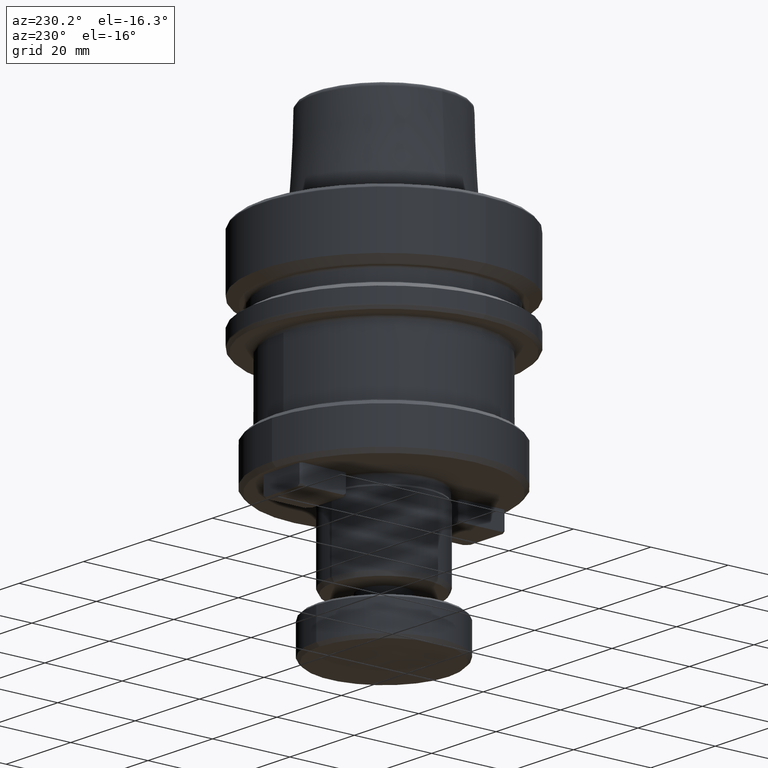
[diagram: clean part render]
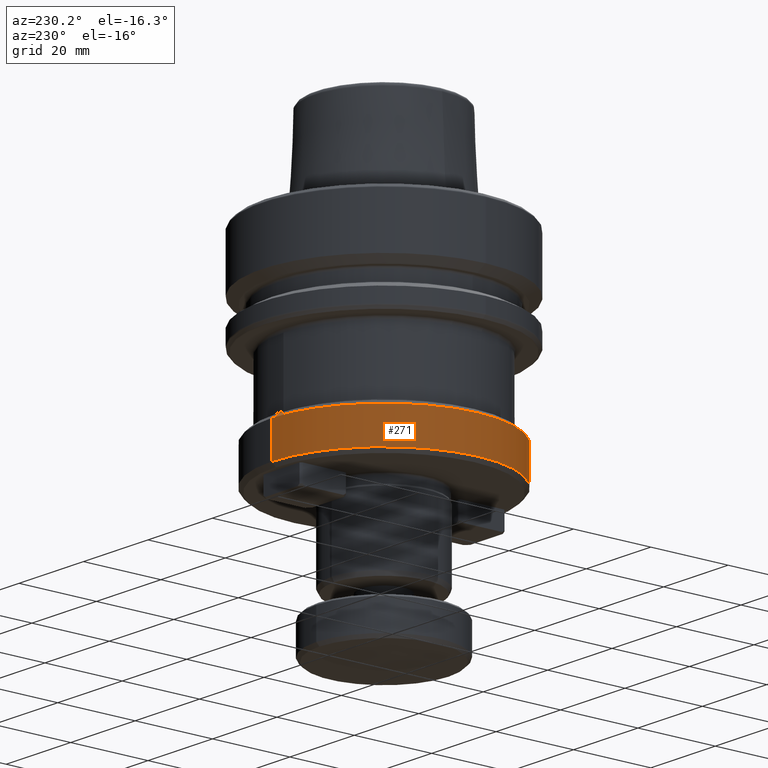
[diagram: same view with one face highlighted and labeled with its STEP entity id]
A machine part, auxiliary view. The second image highlights one B-rep face of the part: STEP entity #271.
In plain terms, the highlighted cylindrical surface (partial cylindrical patch) has radius 29 mm, axis along (-0, 0, -1).
Its self-contained STEP definition (entity closure, byte-faithful):
#46 = VECTOR ( 'NONE', #343, 1000.000000000000000 ) ;
#140 = AXIS2_PLACEMENT_3D ( 'NONE', #2576, #1079, #2833 ) ;
#178 = EDGE_CURVE ( 'NONE', #2361, #206, #264, .T. ) ;
#206 = VERTEX_POINT ( 'NONE', #2157 ) ;
#264 = CIRCLE ( 'NONE', #140, 28.99999999999999600 ) ;
#271 = ADVANCED_FACE ( 'NONE', ( #680 ), #611, .T. ) ;
#343 = DIRECTION ( 'NONE',  ( -0.0000000000000000000, 4.898587196589402800E-018, -1.000000000000000000 ) ) ;
#429 = AXIS2_PLACEMENT_3D ( 'NONE', #522, #2266, #1161 ) ;
#438 = ORIENTED_EDGE ( 'NONE', *, *, #1673, .F. ) ;
#522 = CARTESIAN_POINT ( 'NONE',  ( 1.902633352528937400, 4.065099942295091800, 0.2182076670171617700 ) ) ;
#611 = CYLINDRICAL_SURFACE ( 'NONE', #2142, 28.99999999999999600 ) ;
#613 = VERTEX_POINT ( 'NONE', #2233 ) ;
#629 = VECTOR ( 'NONE', #3137, 1000.000000000000000 ) ;
#657 = DIRECTION ( 'NONE',  ( -0.0000000000000000000, 4.898587196589402800E-018, -1.000000000000000000 ) ) ;
#680 = FACE_OUTER_BOUND ( 'NONE', #3104, .T. ) ;
#936 = ORIENTED_EDGE ( 'NONE', *, *, #178, .T. ) ;
#1079 = DIRECTION ( 'NONE',  ( -0.0000000000000000000, 4.898587196589402800E-018, -1.000000000000000000 ) ) ;
#1151 = ORIENTED_EDGE ( 'NONE', *, *, #1702, .T. ) ;
#1161 = DIRECTION ( 'NONE',  ( 0.0000000000000000000, 1.000000000000000000, 4.673285226230622800E-018 ) ) ;
#1189 = LINE ( 'NONE', #1631, #629 ) ;
#1350 = LINE ( 'NONE', #1825, #46 ) ;
#1631 = CARTESIAN_POINT ( 'NONE',  ( 1.902633352528940900, -24.93490005770490800, -21.78179233298284200 ) ) ;
#1633 = DIRECTION ( 'NONE',  ( 0.0000000000000000000, 1.000000000000000000, 0.0000000000000000000 ) ) ;
#1673 = EDGE_CURVE ( 'NONE', #613, #2754, #2770, .T. ) ;
#1702 = EDGE_CURVE ( 'NONE', #206, #2754, #1350, .T. ) ;
#1825 = CARTESIAN_POINT ( 'NONE',  ( 1.902633352528937400, 33.06509994229509200, -21.78179233298284200 ) ) ;
#2061 = CARTESIAN_POINT ( 'NONE',  ( 1.902633352528937400, 33.06509994229509200, 0.2182076670171619000 ) ) ;
#2075 = ORIENTED_EDGE ( 'NONE', *, *, #2939, .F. ) ;
#2142 = AXIS2_PLACEMENT_3D ( 'NONE', #2144, #657, #1633 ) ;
#2144 = CARTESIAN_POINT ( 'NONE',  ( 1.902633352528937400, 4.065099942295091800, -21.78179233298284200 ) ) ;
#2157 = CARTESIAN_POINT ( 'NONE',  ( 1.902633352528937400, 33.06509994229509200, 9.218207667017141600 ) ) ;
#2233 = CARTESIAN_POINT ( 'NONE',  ( 1.902633352528940900, -24.93490005770490800, 0.2182076670171616300 ) ) ;
#2266 = DIRECTION ( 'NONE',  ( -0.0000000000000000000, 4.898587196589402800E-018, -1.000000000000000000 ) ) ;
#2361 = VERTEX_POINT ( 'NONE', #2916 ) ;
#2576 = CARTESIAN_POINT ( 'NONE',  ( 1.902633352528937400, 4.065099942295091800, 9.218207667017141600 ) ) ;
#2754 = VERTEX_POINT ( 'NONE', #2061 ) ;
#2770 = CIRCLE ( 'NONE', #429, 28.99999999999999600 ) ;
#2833 = DIRECTION ( 'NONE',  ( 0.0000000000000000000, 1.000000000000000000, 0.0000000000000000000 ) ) ;
#2916 = CARTESIAN_POINT ( 'NONE',  ( 1.902633352528940900, -24.93490005770490800, 9.218207667017141600 ) ) ;
#2939 = EDGE_CURVE ( 'NONE', #2361, #613, #1189, .T. ) ;
#3104 = EDGE_LOOP ( 'NONE', ( #2075, #936, #1151, #438 ) ) ;
#3137 = DIRECTION ( 'NONE',  ( -0.0000000000000000000, 4.898587196589402800E-018, -1.000000000000000000 ) ) ;